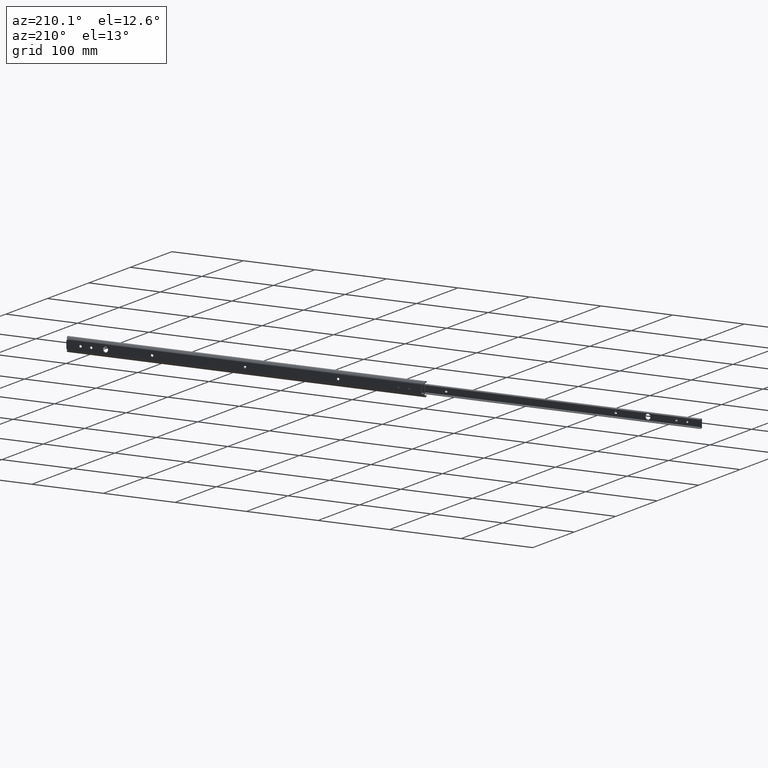
[diagram: clean part render]
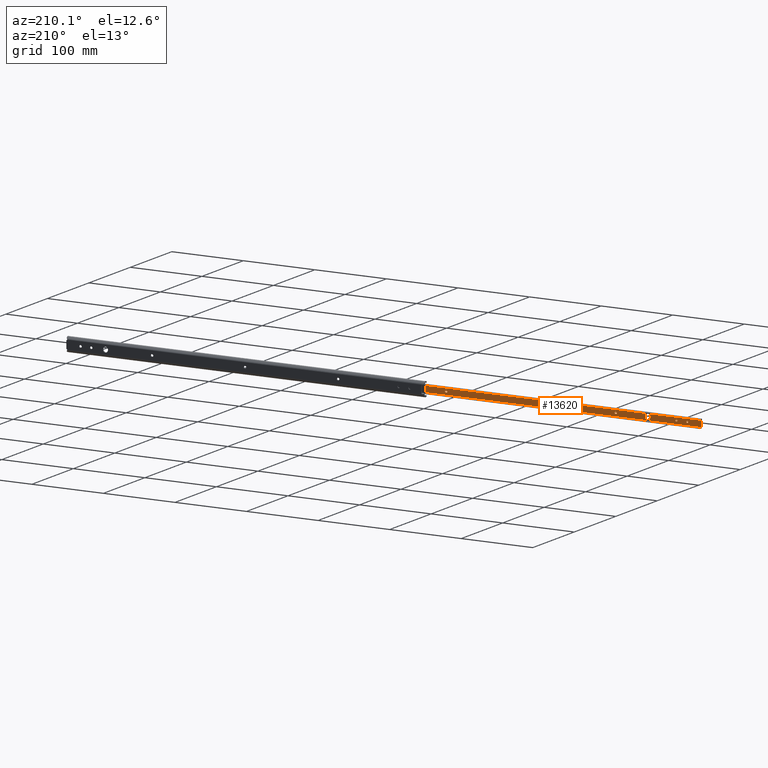
[diagram: same view with one face highlighted and labeled with its STEP entity id]
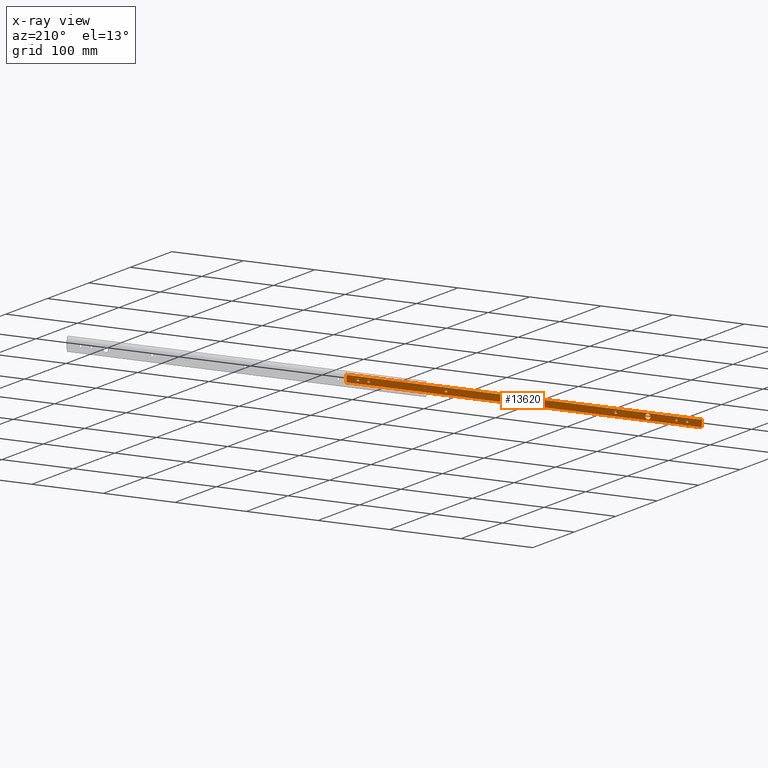
[diagram: x-ray of the same camera — body ghosted, the highlighted face saturated]
A machine part, auxiliary view. The second image highlights one B-rep face of the part: STEP entity #13620.
The next image is the same camera in x-ray: the body ghosted, the highlighted face saturated — about 0% of this face is hidden behind the body in this view.
In plain terms, the highlighted face is a freeform B-spline surface patch.
Its self-contained STEP definition (entity closure, byte-faithful):
#11504=CARTESIAN_POINT('',(-305.378228320206520,-6.800000000000000,-0.453067212944864));
#11505=VERTEX_POINT('',#11504);
#11506=CARTESIAN_POINT('',(-309.0,-6.800000000000000,-3.650000000000000));
#11507=VERTEX_POINT('',#11506);
#11508=CARTESIAN_POINT('',(-305.378228320206570,-6.800000000000000,-0.453067212944864));
#11509=CARTESIAN_POINT('',(-305.778150119050680,-6.800000000000003,-3.650000000000000));
#11510=CARTESIAN_POINT('',(-309.0,-6.800000000000000,-3.650000000000000));
#11518=(BOUNDED_CURVE()B_SPLINE_CURVE(2,(#11508,#11509,#11510),.UNSPECIFIED.,.F.,.U.)B_SPLINE_CURVE_WITH_KNOTS((3,3),(0.771473929469266,1.0),.UNSPECIFIED.)CURVE()GEOMETRIC_REPRESENTATION_ITEM()RATIONAL_B_SPLINE_CURVE((0.954005429307197,0.732265054477853,1.0))REPRESENTATION_ITEM(''));
#11519=EDGE_CURVE('',#11505,#11507,#11518,.T.);
#11521=CARTESIAN_POINT('',(-312.649861019112110,-6.800000000000000,0.031851862832298));
#11522=VERTEX_POINT('',#11521);
#11523=CARTESIAN_POINT('',(-309.0,-6.800000000000000,-3.650000000000000));
#11524=CARTESIAN_POINT('',(-312.650000000000030,-6.800000000000003,-3.650000000000000));
#11525=CARTESIAN_POINT('',(-312.649999999999980,-6.800000000000000,0.0));
#11526=CARTESIAN_POINT('',(-312.649999999999980,-6.800000000000001,0.015926238759265));
#11527=CARTESIAN_POINT('',(-312.649861019112170,-6.800000000000000,0.031851862832298));
#11535=(BOUNDED_CURVE()B_SPLINE_CURVE(2,(#11523,#11524,#11525,#11526,#11527),.UNSPECIFIED.,.F.,.U.)B_SPLINE_CURVE_WITH_KNOTS((3,2,3),(0.0,0.250000000000000,0.251539895132556),.UNSPECIFIED.)CURVE()GEOMETRIC_REPRESENTATION_ITEM()RATIONAL_B_SPLINE_CURVE((1.0,0.707106781186547,1.0,0.998195900631961,0.996414026254607))REPRESENTATION_ITEM(''));
#11536=EDGE_CURVE('',#11507,#11522,#11535,.T.);
#11607=CARTESIAN_POINT('',(-309.0,-6.800000000000000,3.650000000000000));
#11608=VERTEX_POINT('',#11607);
#11609=CARTESIAN_POINT('',(-309.0,-6.800000000000000,3.650000000000000));
#11610=CARTESIAN_POINT('',(-305.350000000000080,-6.800000000000003,3.650000000000000));
#11611=CARTESIAN_POINT('',(-305.350000000000020,-6.800000000000000,0.0));
#11612=CARTESIAN_POINT('',(-305.349999999999970,-6.800000000000001,-0.227412990913410));
#11613=CARTESIAN_POINT('',(-305.378228320206570,-6.800000000000000,-0.453067212944864));
#11621=(BOUNDED_CURVE()B_SPLINE_CURVE(2,(#11609,#11610,#11611,#11612,#11613),.UNSPECIFIED.,.F.,.U.)B_SPLINE_CURVE_WITH_KNOTS((3,2,3),(0.500000000000000,0.750000000000000,0.771473929469266),.UNSPECIFIED.)CURVE()GEOMETRIC_REPRESENTATION_ITEM()RATIONAL_B_SPLINE_CURVE((1.0,0.707106781186547,1.0,0.974841726708695,0.954005429307197))REPRESENTATION_ITEM(''));
#11622=EDGE_CURVE('',#11608,#11505,#11621,.T.);
#11656=CARTESIAN_POINT('',(-312.649861019112170,-6.800000000000000,0.031851862832298));
#11657=CARTESIAN_POINT('',(-312.618285902287540,-6.800000000000002,3.650000000000000));
#11658=CARTESIAN_POINT('',(-309.0,-6.800000000000000,3.650000000000000));
#11666=(BOUNDED_CURVE()B_SPLINE_CURVE(2,(#11656,#11657,#11658),.UNSPECIFIED.,.F.,.U.)B_SPLINE_CURVE_WITH_KNOTS((3,3),(0.251539895132556,0.500000000000000),.UNSPECIFIED.)CURVE()GEOMETRIC_REPRESENTATION_ITEM()RATIONAL_B_SPLINE_CURVE((0.996414026254607,0.708910880554586,1.0))REPRESENTATION_ITEM(''));
#11667=EDGE_CURVE('',#11522,#11608,#11666,.T.);
#11690=CARTESIAN_POINT('',(-362.412374062131110,-6.800000000000000,-0.198604837317651));
#11691=VERTEX_POINT('',#11690);
#11692=CARTESIAN_POINT('',(-364.0,-6.800000000000000,-1.600000000000000));
#11693=VERTEX_POINT('',#11692);
#11694=CARTESIAN_POINT('',(-362.412374062131110,-6.800000000000000,-0.198604837317651));
#11695=CARTESIAN_POINT('',(-362.587682300704440,-6.800000000000002,-1.600000000000000));
#11696=CARTESIAN_POINT('',(-364.0,-6.800000000000000,-1.600000000000000));
#11704=(BOUNDED_CURVE()B_SPLINE_CURVE(2,(#11694,#11695,#11696),.UNSPECIFIED.,.F.,.U.)B_SPLINE_CURVE_WITH_KNOTS((3,3),(0.771473936191876,1.0),.UNSPECIFIED.)CURVE()GEOMETRIC_REPRESENTATION_ITEM()RATIONAL_B_SPLINE_CURVE((0.954005416261210,0.732265062353881,1.0))REPRESENTATION_ITEM(''));
#11705=EDGE_CURVE('',#11691,#11693,#11704,.T.);
#11707=CARTESIAN_POINT('',(-365.599939076892890,-6.800000000000000,0.013962457916201));
#11708=VERTEX_POINT('',#11707);
#11709=CARTESIAN_POINT('',(-364.0,-6.800000000000000,-1.600000000000000));
#11710=CARTESIAN_POINT('',(-365.600000000000020,-6.800000000000002,-1.600000000000000));
#11711=CARTESIAN_POINT('',(-365.600000000000020,-6.800000000000000,0.0));
#11712=CARTESIAN_POINT('',(-365.599999999999970,-6.800000000000000,0.006981362431989));
#11713=CARTESIAN_POINT('',(-365.599939076892840,-6.800000000000000,0.013962457916201));
#11721=(BOUNDED_CURVE()B_SPLINE_CURVE(2,(#11709,#11710,#11711,#11712,#11713),.UNSPECIFIED.,.F.,.U.)B_SPLINE_CURVE_WITH_KNOTS((3,2,3),(0.0,0.250000000000000,0.251539894581333),.UNSPECIFIED.)CURVE()GEOMETRIC_REPRESENTATION_ITEM()RATIONAL_B_SPLINE_CURVE((1.0,0.707106781186548,1.0,0.998195901277760,0.996414027530293))REPRESENTATION_ITEM(''));
#11722=EDGE_CURVE('',#11693,#11708,#11721,.T.);
#11793=CARTESIAN_POINT('',(-364.0,-6.800000000000000,1.600000000000000));
#11794=VERTEX_POINT('',#11793);
#11795=CARTESIAN_POINT('',(-364.0,-6.800000000000000,1.600000000000000));
#11796=CARTESIAN_POINT('',(-362.399999999999920,-6.800000000000002,1.600000000000000));
#11797=CARTESIAN_POINT('',(-362.399999999999980,-6.800000000000000,0.0));
#11798=CARTESIAN_POINT('',(-362.399999999999980,-6.800000000000000,-0.099687918441414));
#11799=CARTESIAN_POINT('',(-362.412374062131160,-6.800000000000000,-0.198604837317651));
#11807=(BOUNDED_CURVE()B_SPLINE_CURVE(2,(#11795,#11796,#11797,#11798,#11799),.UNSPECIFIED.,.F.,.U.)B_SPLINE_CURVE_WITH_KNOTS((3,2,3),(0.500000000000000,0.750000000000000,0.771473936191877),.UNSPECIFIED.)CURVE()GEOMETRIC_REPRESENTATION_ITEM()RATIONAL_B_SPLINE_CURVE((1.0,0.707106781186548,1.0,0.974841718832666,0.954005416261208))REPRESENTATION_ITEM(''));
#11808=EDGE_CURVE('',#11794,#11691,#11807,.T.);
#11842=CARTESIAN_POINT('',(-365.599939076892840,-6.800000000000000,0.013962457916201));
#11843=CARTESIAN_POINT('',(-365.586097934733460,-6.800000000000001,1.600000000000000));
#11844=CARTESIAN_POINT('',(-364.0,-6.800000000000000,1.600000000000000));
#11852=(BOUNDED_CURVE()B_SPLINE_CURVE(2,(#11842,#11843,#11844),.UNSPECIFIED.,.F.,.U.)B_SPLINE_CURVE_WITH_KNOTS((3,3),(0.251539894581333,0.500000000000000),.UNSPECIFIED.)CURVE()GEOMETRIC_REPRESENTATION_ITEM()RATIONAL_B_SPLINE_CURVE((0.996414027530293,0.708910879908787,1.0))REPRESENTATION_ITEM(''));
#11853=EDGE_CURVE('',#11708,#11794,#11852,.T.);
#11863=CARTESIAN_POINT('',(96.299999999999997,-6.800000000000000,-1.600000000000000));
#11864=VERTEX_POINT('',#11863);
#11865=CARTESIAN_POINT('',(95.699999999999989,-6.800000000000000,-1.600000000000000));
#11866=VERTEX_POINT('',#11865);
#11867=CARTESIAN_POINT('',(96.299999999999997,-6.800000000000000,-1.600000000000000));
#11868=CARTESIAN_POINT('',(95.699999999999989,-6.800000000000000,-1.600000000000000));
#11869=QUASI_UNIFORM_CURVE('',1,(#11867,#11868),.UNSPECIFIED.,.F.,.U.);
#11870=EDGE_CURVE('',#11864,#11866,#11869,.T.);
#11912=CARTESIAN_POINT('',(95.699999999999989,-6.800000000000000,1.599999999999910));
#11913=VERTEX_POINT('',#11912);
#11914=CARTESIAN_POINT('',(95.699999999999989,-6.800000000000000,-1.600000000000000));
#11915=CARTESIAN_POINT('',(94.099999999999980,-6.800000000000002,-1.600000000000000));
#11916=CARTESIAN_POINT('',(94.099999999999994,-6.800000000000000,0.0));
#11917=CARTESIAN_POINT('',(94.099999999999980,-6.800000000000002,1.600000000000000));
#11918=CARTESIAN_POINT('',(95.699999999999989,-6.800000000000000,1.600000000000000));
#11926=(BOUNDED_CURVE()B_SPLINE_CURVE(2,(#11914,#11915,#11916,#11917,#11918),.UNSPECIFIED.,.F.,.U.)B_SPLINE_CURVE_WITH_KNOTS((3,2,3),(0.0,0.500000000000000,1.0),.UNSPECIFIED.)CURVE()GEOMETRIC_REPRESENTATION_ITEM()RATIONAL_B_SPLINE_CURVE((1.0,0.707106781186548,1.0,0.707106781186548,1.0))REPRESENTATION_ITEM(''));
#11927=EDGE_CURVE('',#11866,#11913,#11926,.T.);
#11960=CARTESIAN_POINT('',(96.299999999999997,-6.800000000000000,1.599999999999910));
#11961=VERTEX_POINT('',#11960);
#11962=CARTESIAN_POINT('',(95.699999999999989,-6.800000000000000,1.599999999999910));
#11963=CARTESIAN_POINT('',(96.299999999999997,-6.800000000000000,1.599999999999910));
#11964=QUASI_UNIFORM_CURVE('',1,(#11962,#11963),.UNSPECIFIED.,.F.,.U.);
#11965=EDGE_CURVE('',#11913,#11961,#11964,.T.);
#12001=CARTESIAN_POINT('',(96.299999999999997,-6.800000000000000,1.600000000000000));
#12002=CARTESIAN_POINT('',(97.899999999999991,-6.800000000000002,1.600000000000000));
#12003=CARTESIAN_POINT('',(97.900000000000006,-6.800000000000000,0.0));
#12004=CARTESIAN_POINT('',(97.899999999999991,-6.800000000000002,-1.600000000000000));
#12005=CARTESIAN_POINT('',(96.299999999999997,-6.800000000000000,-1.600000000000000));
#12013=(BOUNDED_CURVE()B_SPLINE_CURVE(2,(#12001,#12002,#12003,#12004,#12005),.UNSPECIFIED.,.F.,.U.)B_SPLINE_CURVE_WITH_KNOTS((3,2,3),(0.0,0.500000000000000,1.0),.UNSPECIFIED.)CURVE()GEOMETRIC_REPRESENTATION_ITEM()RATIONAL_B_SPLINE_CURVE((1.0,0.707106781186548,1.0,0.707106781186548,1.0))REPRESENTATION_ITEM(''));
#12014=EDGE_CURVE('',#11961,#11864,#12013,.T.);
#12041=CARTESIAN_POINT('',(81.299999999999997,-6.800000000000000,-1.600000000000000));
#12042=VERTEX_POINT('',#12041);
#12043=CARTESIAN_POINT('',(80.699999999999989,-6.800000000000000,-1.600000000000000));
#12044=VERTEX_POINT('',#12043);
#12045=CARTESIAN_POINT('',(81.299999999999997,-6.800000000000000,-1.600000000000000));
#12046=CARTESIAN_POINT('',(80.699999999999989,-6.800000000000000,-1.600000000000000));
#12047=QUASI_UNIFORM_CURVE('',1,(#12045,#12046),.UNSPECIFIED.,.F.,.U.);
#12048=EDGE_CURVE('',#12042,#12044,#12047,.T.);
#12090=CARTESIAN_POINT('',(80.699999999999989,-6.800000000000000,1.599999999999910));
#12091=VERTEX_POINT('',#12090);
#12092=CARTESIAN_POINT('',(80.699999999999989,-6.800000000000000,-1.600000000000000));
#12093=CARTESIAN_POINT('',(79.099999999999994,-6.800000000000002,-1.600000000000000));
#12094=CARTESIAN_POINT('',(79.099999999999994,-6.800000000000000,0.0));
#12095=CARTESIAN_POINT('',(79.099999999999994,-6.800000000000002,1.600000000000000));
#12096=CARTESIAN_POINT('',(80.699999999999989,-6.800000000000000,1.600000000000000));
#12104=(BOUNDED_CURVE()B_SPLINE_CURVE(2,(#12092,#12093,#12094,#12095,#12096),.UNSPECIFIED.,.F.,.U.)B_SPLINE_CURVE_WITH_KNOTS((3,2,3),(0.0,0.500000000000000,1.0),.UNSPECIFIED.)CURVE()GEOMETRIC_REPRESENTATION_ITEM()RATIONAL_B_SPLINE_CURVE((1.0,0.707106781186548,1.0,0.707106781186548,1.0))REPRESENTATION_ITEM(''));
#12105=EDGE_CURVE('',#12044,#12091,#12104,.T.);
#12138=CARTESIAN_POINT('',(81.299999999999997,-6.800000000000000,1.599999999999910));
#12139=VERTEX_POINT('',#12138);
#12140=CARTESIAN_POINT('',(80.699999999999989,-6.800000000000000,1.599999999999910));
#12141=CARTESIAN_POINT('',(81.299999999999997,-6.800000000000000,1.599999999999910));
#12142=QUASI_UNIFORM_CURVE('',1,(#12140,#12141),.UNSPECIFIED.,.F.,.U.);
#12143=EDGE_CURVE('',#12091,#12139,#12142,.T.);
#12179=CARTESIAN_POINT('',(81.299999999999997,-6.800000000000000,1.600000000000000));
#12180=CARTESIAN_POINT('',(82.900000000000006,-6.800000000000002,1.600000000000000));
#12181=CARTESIAN_POINT('',(82.900000000000006,-6.800000000000000,0.0));
#12182=CARTESIAN_POINT('',(82.900000000000006,-6.800000000000002,-1.600000000000000));
#12183=CARTESIAN_POINT('',(81.299999999999997,-6.800000000000000,-1.600000000000000));
#12191=(BOUNDED_CURVE()B_SPLINE_CURVE(2,(#12179,#12180,#12181,#12182,#12183),.UNSPECIFIED.,.F.,.U.)B_SPLINE_CURVE_WITH_KNOTS((3,2,3),(0.0,0.500000000000000,1.0),.UNSPECIFIED.)CURVE()GEOMETRIC_REPRESENTATION_ITEM()RATIONAL_B_SPLINE_CURVE((1.0,0.707106781186548,1.0,0.707106781186548,1.0))REPRESENTATION_ITEM(''));
#12192=EDGE_CURVE('',#12139,#12042,#12191,.T.);
#12219=CARTESIAN_POINT('',(-26.699999999999999,-6.800000000000000,-1.600000000000000));
#12220=VERTEX_POINT('',#12219);
#12221=CARTESIAN_POINT('',(-27.300000000000001,-6.800000000000000,-1.600000000000000));
#12222=VERTEX_POINT('',#12221);
#12223=CARTESIAN_POINT('',(-26.699999999999999,-6.800000000000000,-1.600000000000000));
#12224=CARTESIAN_POINT('',(-27.300000000000001,-6.800000000000000,-1.600000000000000));
#12225=QUASI_UNIFORM_CURVE('',1,(#12223,#12224),.UNSPECIFIED.,.F.,.U.);
#12226=EDGE_CURVE('',#12220,#12222,#12225,.T.);
#12268=CARTESIAN_POINT('',(-27.300000000000001,-6.800000000000000,1.599999999999910));
#12269=VERTEX_POINT('',#12268);
#12270=CARTESIAN_POINT('',(-27.300000000000001,-6.800000000000000,-1.600000000000000));
#12271=CARTESIAN_POINT('',(-28.900000000000006,-6.800000000000002,-1.600000000000000));
#12272=CARTESIAN_POINT('',(-28.899999999999999,-6.800000000000000,0.0));
#12273=CARTESIAN_POINT('',(-28.900000000000006,-6.800000000000002,1.600000000000000));
#12274=CARTESIAN_POINT('',(-27.300000000000001,-6.800000000000000,1.600000000000000));
#12282=(BOUNDED_CURVE()B_SPLINE_CURVE(2,(#12270,#12271,#12272,#12273,#12274),.UNSPECIFIED.,.F.,.U.)B_SPLINE_CURVE_WITH_KNOTS((3,2,3),(0.0,0.500000000000000,1.0),.UNSPECIFIED.)CURVE()GEOMETRIC_REPRESENTATION_ITEM()RATIONAL_B_SPLINE_CURVE((1.0,0.707106781186548,1.0,0.707106781186548,1.0))REPRESENTATION_ITEM(''));
#12283=EDGE_CURVE('',#12222,#12269,#12282,.T.);
#12316=CARTESIAN_POINT('',(-26.699999999999999,-6.800000000000000,1.599999999999910));
#12317=VERTEX_POINT('',#12316);
#12318=CARTESIAN_POINT('',(-27.300000000000001,-6.800000000000000,1.599999999999910));
#12319=CARTESIAN_POINT('',(-26.699999999999999,-6.800000000000000,1.599999999999910));
#12320=QUASI_UNIFORM_CURVE('',1,(#12318,#12319),.UNSPECIFIED.,.F.,.U.);
#12321=EDGE_CURVE('',#12269,#12317,#12320,.T.);
#12357=CARTESIAN_POINT('',(-26.699999999999999,-6.800000000000000,1.600000000000000));
#12358=CARTESIAN_POINT('',(-25.099999999999994,-6.800000000000002,1.600000000000000));
#12359=CARTESIAN_POINT('',(-25.100000000000001,-6.800000000000000,0.0));
#12360=CARTESIAN_POINT('',(-25.099999999999994,-6.800000000000002,-1.600000000000000));
#12361=CARTESIAN_POINT('',(-26.699999999999999,-6.800000000000000,-1.600000000000000));
#12369=(BOUNDED_CURVE()B_SPLINE_CURVE(2,(#12357,#12358,#12359,#12360,#12361),.UNSPECIFIED.,.F.,.U.)B_SPLINE_CURVE_WITH_KNOTS((3,2,3),(0.0,0.500000000000000,1.0),.UNSPECIFIED.)CURVE()GEOMETRIC_REPRESENTATION_ITEM()RATIONAL_B_SPLINE_CURVE((1.0,0.707106781186548,1.0,0.707106781186548,1.0))REPRESENTATION_ITEM(''));
#12370=EDGE_CURVE('',#12317,#12220,#12369,.T.);
#12397=CARTESIAN_POINT('',(-263.699999999999990,-6.800000000000000,-1.600000000000000));
#12398=VERTEX_POINT('',#12397);
#12399=CARTESIAN_POINT('',(-264.300000000000010,-6.800000000000000,-1.600000000000000));
#12400=VERTEX_POINT('',#12399);
#12401=CARTESIAN_POINT('',(-263.699999999999990,-6.800000000000000,-1.600000000000000));
#12402=CARTESIAN_POINT('',(-264.300000000000010,-6.800000000000000,-1.600000000000000));
#12403=QUASI_UNIFORM_CURVE('',1,(#12401,#12402),.UNSPECIFIED.,.F.,.U.);
#12404=EDGE_CURVE('',#12398,#12400,#12403,.T.);
#12446=CARTESIAN_POINT('',(-264.300000000000010,-6.800000000000000,1.599999999999910));
#12447=VERTEX_POINT('',#12446);
#12448=CARTESIAN_POINT('',(-264.300000000000010,-6.800000000000000,-1.600000000000000));
#12449=CARTESIAN_POINT('',(-265.900000000000030,-6.800000000000002,-1.600000000000000));
#12450=CARTESIAN_POINT('',(-265.899999999999980,-6.800000000000000,0.0));
#12451=CARTESIAN_POINT('',(-265.900000000000030,-6.800000000000002,1.600000000000000));
#12452=CARTESIAN_POINT('',(-264.300000000000010,-6.800000000000000,1.600000000000000));
#12460=(BOUNDED_CURVE()B_SPLINE_CURVE(2,(#12448,#12449,#12450,#12451,#12452),.UNSPECIFIED.,.F.,.U.)B_SPLINE_CURVE_WITH_KNOTS((3,2,3),(0.0,0.500000000000000,1.0),.UNSPECIFIED.)CURVE()GEOMETRIC_REPRESENTATION_ITEM()RATIONAL_B_SPLINE_CURVE((1.0,0.707106781186548,1.0,0.707106781186548,1.0))REPRESENTATION_ITEM(''));
#12461=EDGE_CURVE('',#12400,#12447,#12460,.T.);
#12494=CARTESIAN_POINT('',(-263.699999999999990,-6.800000000000000,1.599999999999910));
#12495=VERTEX_POINT('',#12494);
#12496=CARTESIAN_POINT('',(-264.300000000000010,-6.800000000000000,1.599999999999910));
#12497=CARTESIAN_POINT('',(-263.699999999999990,-6.800000000000000,1.599999999999910));
#12498=QUASI_UNIFORM_CURVE('',1,(#12496,#12497),.UNSPECIFIED.,.F.,.U.);
#12499=EDGE_CURVE('',#12447,#12495,#12498,.T.);
#12535=CARTESIAN_POINT('',(-263.699999999999990,-6.800000000000000,1.600000000000000));
#12536=CARTESIAN_POINT('',(-262.099999999999970,-6.800000000000002,1.600000000000000));
#12537=CARTESIAN_POINT('',(-262.100000000000020,-6.800000000000000,0.0));
#12538=CARTESIAN_POINT('',(-262.099999999999970,-6.800000000000002,-1.600000000000000));
#12539=CARTESIAN_POINT('',(-263.699999999999990,-6.800000000000000,-1.600000000000000));
#12547=(BOUNDED_CURVE()B_SPLINE_CURVE(2,(#12535,#12536,#12537,#12538,#12539),.UNSPECIFIED.,.F.,.U.)B_SPLINE_CURVE_WITH_KNOTS((3,2,3),(0.0,0.500000000000000,1.0),.UNSPECIFIED.)CURVE()GEOMETRIC_REPRESENTATION_ITEM()RATIONAL_B_SPLINE_CURVE((1.0,0.707106781186548,1.0,0.707106781186548,1.0))REPRESENTATION_ITEM(''));
#12548=EDGE_CURVE('',#12495,#12398,#12547,.T.);
#12575=CARTESIAN_POINT('',(-348.699999999999990,-6.800000000000000,-1.600000000000000));
#12576=VERTEX_POINT('',#12575);
#12577=CARTESIAN_POINT('',(-349.300000000000010,-6.800000000000000,-1.600000000000000));
#12578=VERTEX_POINT('',#12577);
#12579=CARTESIAN_POINT('',(-348.699999999999990,-6.800000000000000,-1.600000000000000));
#12580=CARTESIAN_POINT('',(-349.300000000000010,-6.800000000000000,-1.600000000000000));
#12581=QUASI_UNIFORM_CURVE('',1,(#12579,#12580),.UNSPECIFIED.,.F.,.U.);
#12582=EDGE_CURVE('',#12576,#12578,#12581,.T.);
#12624=CARTESIAN_POINT('',(-349.300000000000010,-6.800000000000000,1.599999999999910));
#12625=VERTEX_POINT('',#12624);
#12626=CARTESIAN_POINT('',(-349.300000000000010,-6.800000000000000,-1.600000000000000));
#12627=CARTESIAN_POINT('',(-350.899999999999920,-6.800000000000002,-1.600000000000000));
#12628=CARTESIAN_POINT('',(-350.899999999999980,-6.800000000000000,0.0));
#12629=CARTESIAN_POINT('',(-350.899999999999920,-6.800000000000002,1.600000000000000));
#12630=CARTESIAN_POINT('',(-349.300000000000010,-6.800000000000000,1.600000000000000));
#12638=(BOUNDED_CURVE()B_SPLINE_CURVE(2,(#12626,#12627,#12628,#12629,#12630),.UNSPECIFIED.,.F.,.U.)B_SPLINE_CURVE_WITH_KNOTS((3,2,3),(0.0,0.500000000000000,1.0),.UNSPECIFIED.)CURVE()GEOMETRIC_REPRESENTATION_ITEM()RATIONAL_B_SPLINE_CURVE((1.0,0.707106781186548,1.0,0.707106781186548,1.0))REPRESENTATION_ITEM(''));
#12639=EDGE_CURVE('',#12578,#12625,#12638,.T.);
#12672=CARTESIAN_POINT('',(-348.699999999999990,-6.800000000000000,1.599999999999910));
#12673=VERTEX_POINT('',#12672);
#12674=CARTESIAN_POINT('',(-349.300000000000010,-6.800000000000000,1.599999999999910));
#12675=CARTESIAN_POINT('',(-348.699999999999990,-6.800000000000000,1.599999999999910));
#12676=QUASI_UNIFORM_CURVE('',1,(#12674,#12675),.UNSPECIFIED.,.F.,.U.);
#12677=EDGE_CURVE('',#12625,#12673,#12676,.T.);
#12713=CARTESIAN_POINT('',(-348.699999999999990,-6.800000000000000,1.600000000000000));
#12714=CARTESIAN_POINT('',(-347.100000000000080,-6.800000000000002,1.600000000000000));
#12715=CARTESIAN_POINT('',(-347.100000000000020,-6.800000000000000,0.0));
#12716=CARTESIAN_POINT('',(-347.100000000000080,-6.800000000000002,-1.600000000000000));
#12717=CARTESIAN_POINT('',(-348.699999999999990,-6.800000000000000,-1.600000000000000));
#12725=(BOUNDED_CURVE()B_SPLINE_CURVE(2,(#12713,#12714,#12715,#12716,#12717),.UNSPECIFIED.,.F.,.U.)B_SPLINE_CURVE_WITH_KNOTS((3,2,3),(0.0,0.500000000000000,1.0),.UNSPECIFIED.)CURVE()GEOMETRIC_REPRESENTATION_ITEM()RATIONAL_B_SPLINE_CURVE((1.0,0.707106781186548,1.0,0.707106781186548,1.0))REPRESENTATION_ITEM(''));
#12726=EDGE_CURVE('',#12673,#12576,#12725,.T.);
#12823=CARTESIAN_POINT('',(111.800000000000000,-6.800000000000139,4.300000000000000));
#12824=VERTEX_POINT('',#12823);
#12830=CARTESIAN_POINT('',(113.0,-6.800000000000139,4.641039999999910));
#12831=VERTEX_POINT('',#12830);
#12832=CARTESIAN_POINT('',(113.0,-6.800000000000139,4.641039999999910));
#12833=CARTESIAN_POINT('',(111.800000000000000,-6.800000000000139,4.300000000000000));
#12834=QUASI_UNIFORM_CURVE('',1,(#12832,#12833),.UNSPECIFIED.,.F.,.U.);
#12835=EDGE_CURVE('',#12831,#12824,#12834,.T.);
#12859=CARTESIAN_POINT('',(113.0,-6.800000000000139,-4.641040000000000));
#12860=VERTEX_POINT('',#12859);
#12866=CARTESIAN_POINT('',(111.800000000000000,-6.800000000000240,-4.300000000000000));
#12867=VERTEX_POINT('',#12866);
#12868=CARTESIAN_POINT('',(111.800000000000000,-6.800000000000240,-4.300000000000000));
#12869=CARTESIAN_POINT('',(113.0,-6.800000000000139,-4.641040000000000));
#12870=QUASI_UNIFORM_CURVE('',1,(#12868,#12869),.UNSPECIFIED.,.F.,.U.);
#12871=EDGE_CURVE('',#12867,#12860,#12870,.T.);
#12905=CARTESIAN_POINT('',(111.800000000000000,-6.800000000000139,4.300000000000000));
#12906=CARTESIAN_POINT('',(111.800000000000000,-6.800000000000240,-4.300000000000000));
#12907=QUASI_UNIFORM_CURVE('',1,(#12905,#12906),.UNSPECIFIED.,.F.,.U.);
#12908=EDGE_CURVE('',#12824,#12867,#12907,.T.);
#13029=CARTESIAN_POINT('',(-384.0,-6.800000000000080,4.641039999999910));
#13030=VERTEX_POINT('',#13029);
#13046=CARTESIAN_POINT('',(-384.0,-6.800000000000000,-4.641040000000000));
#13047=VERTEX_POINT('',#13046);
#13048=CARTESIAN_POINT('',(-384.0,-6.800000000000080,4.641039999999910));
#13049=CARTESIAN_POINT('',(-384.0,-6.800000000000000,-4.641040000000000));
#13050=QUASI_UNIFORM_CURVE('',1,(#13048,#13049),.UNSPECIFIED.,.F.,.U.);
#13051=EDGE_CURVE('',#13030,#13047,#13050,.T.);
#13245=CARTESIAN_POINT('',(113.0,-6.800000000000139,4.641039999999910));
#13246=CARTESIAN_POINT('',(-384.0,-6.800000000000080,4.641039999999910));
#13247=QUASI_UNIFORM_CURVE('',1,(#13245,#13246),.UNSPECIFIED.,.F.,.U.);
#13248=EDGE_CURVE('',#12831,#13030,#13247,.T.);
#13296=CARTESIAN_POINT('',(113.0,-6.800000000000139,-4.641040000000000));
#13297=CARTESIAN_POINT('',(-384.0,-6.800000000000000,-4.641040000000000));
#13298=QUASI_UNIFORM_CURVE('',1,(#13296,#13297),.UNSPECIFIED.,.F.,.U.);
#13299=EDGE_CURVE('',#12860,#13047,#13298,.T.);
#13565=CARTESIAN_POINT('',(-408.825149036717620,-6.800000000000000,5.104679757713797));
#13566=CARTESIAN_POINT('',(-408.825149036717620,-6.800000000000000,-5.104679425760839));
#13567=CARTESIAN_POINT('',(137.825162367296290,-6.800000000000000,5.104679757713797));
#13568=CARTESIAN_POINT('',(137.825162367296290,-6.800000000000000,-5.104679425760839));
#13569=B_SPLINE_SURFACE_WITH_KNOTS('',1,1,((#13565,#13567),(#13566,#13568)),.UNSPECIFIED.,.F.,.F.,.U.,(2,2),(2,2),(0.0,10.209359183474641),(0.0,546.650311404014020),.UNSPECIFIED.);
#13570=ORIENTED_EDGE('',*,*,#13248,.F.);
#13571=ORIENTED_EDGE('',*,*,#12835,.T.);
#13572=ORIENTED_EDGE('',*,*,#12908,.T.);
#13573=ORIENTED_EDGE('',*,*,#12871,.T.);
#13574=ORIENTED_EDGE('',*,*,#13299,.T.);
#13575=ORIENTED_EDGE('',*,*,#13051,.F.);
#13576=EDGE_LOOP('',(#13570,#13571,#13572,#13573,#13574,#13575));
#13577=FACE_OUTER_BOUND('',#13576,.T.);
#13578=ORIENTED_EDGE('',*,*,#12548,.F.);
#13579=ORIENTED_EDGE('',*,*,#12499,.F.);
#13580=ORIENTED_EDGE('',*,*,#12461,.F.);
#13581=ORIENTED_EDGE('',*,*,#12404,.F.);
#13582=EDGE_LOOP('',(#13578,#13579,#13580,#13581));
#13583=FACE_BOUND('',#13582,.T.);
#13584=ORIENTED_EDGE('',*,*,#12726,.F.);
#13585=ORIENTED_EDGE('',*,*,#12677,.F.);
#13586=ORIENTED_EDGE('',*,*,#12639,.F.);
#13587=ORIENTED_EDGE('',*,*,#12582,.F.);
#13588=EDGE_LOOP('',(#13584,#13585,#13586,#13587));
#13589=FACE_BOUND('',#13588,.T.);
#13590=ORIENTED_EDGE('',*,*,#12192,.F.);
#13591=ORIENTED_EDGE('',*,*,#12143,.F.);
#13592=ORIENTED_EDGE('',*,*,#12105,.F.);
#13593=ORIENTED_EDGE('',*,*,#12048,.F.);
#13594=EDGE_LOOP('',(#13590,#13591,#13592,#13593));
#13595=FACE_BOUND('',#13594,.T.);
#13596=ORIENTED_EDGE('',*,*,#12370,.F.);
#13597=ORIENTED_EDGE('',*,*,#12321,.F.);
#13598=ORIENTED_EDGE('',*,*,#12283,.F.);
#13599=ORIENTED_EDGE('',*,*,#12226,.F.);
#13600=EDGE_LOOP('',(#13596,#13597,#13598,#13599));
#13601=FACE_BOUND('',#13600,.T.);
#13602=ORIENTED_EDGE('',*,*,#12014,.F.);
#13603=ORIENTED_EDGE('',*,*,#11965,.F.);
#13604=ORIENTED_EDGE('',*,*,#11927,.F.);
#13605=ORIENTED_EDGE('',*,*,#11870,.F.);
#13606=EDGE_LOOP('',(#13602,#13603,#13604,#13605));
#13607=FACE_BOUND('',#13606,.T.);
#13608=ORIENTED_EDGE('',*,*,#11722,.F.);
#13609=ORIENTED_EDGE('',*,*,#11705,.F.);
#13610=ORIENTED_EDGE('',*,*,#11808,.F.);
#13611=ORIENTED_EDGE('',*,*,#11853,.F.);
#13612=EDGE_LOOP('',(#13608,#13609,#13610,#13611));
#13613=FACE_BOUND('',#13612,.T.);
#13614=ORIENTED_EDGE('',*,*,#11536,.F.);
#13615=ORIENTED_EDGE('',*,*,#11519,.F.);
#13616=ORIENTED_EDGE('',*,*,#11622,.F.);
#13617=ORIENTED_EDGE('',*,*,#11667,.F.);
#13618=EDGE_LOOP('',(#13614,#13615,#13616,#13617));
#13619=FACE_BOUND('',#13618,.T.);
#13620=ADVANCED_FACE('',(#13577,#13583,#13589,#13595,#13601,#13607,#13613,#13619),#13569,.F.);